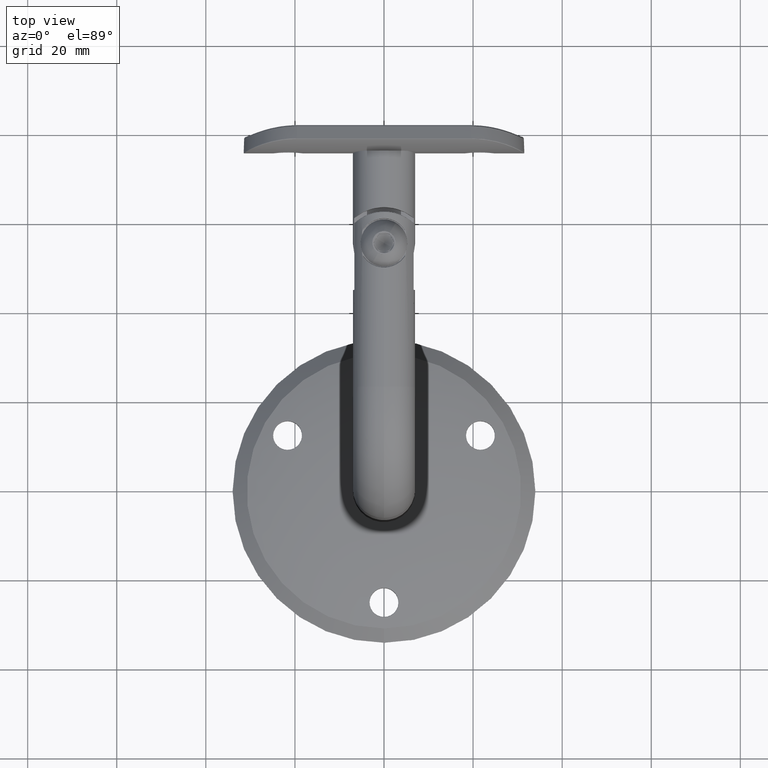
[diagram: clean part render]
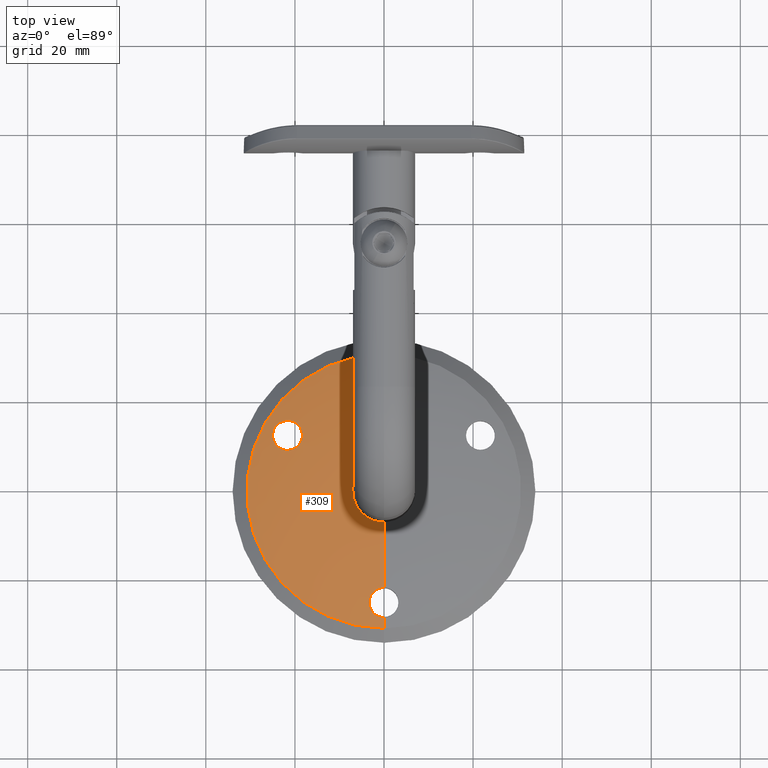
[diagram: same view with one face highlighted and labeled with its STEP entity id]
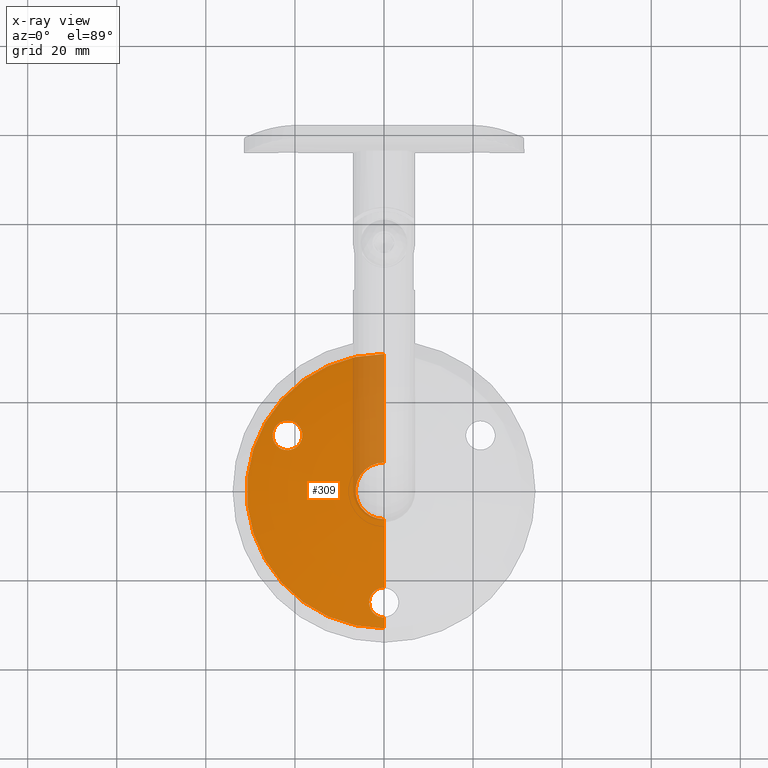
[diagram: x-ray of the same camera — body ghosted, the highlighted face saturated]
A machine part, top view. The second image highlights one B-rep face of the part: STEP entity #309.
The next image is the same camera in x-ray: the body ghosted, the highlighted face saturated — about 14% of this face is hidden behind the body in this view.
In plain terms, the highlighted toroidal blend (fillet) surface has major radius 6.25 mm and minor (blend) radius 96.8679 mm.
Its self-contained STEP definition (entity closure, byte-faithful):
#113 = CARTESIAN_POINT ( 'NONE',  ( -18.88436975276088958, 7.764005127690458252, -10.63877129872335026 ) ) ;
#309 = ADVANCED_FACE ( 'NONE', ( #7480, #27761 ), #23223, .T. ) ;
#460 = AXIS2_PLACEMENT_3D ( 'NONE', #38809, #41930, #41791 ) ;
#545 = CARTESIAN_POINT ( 'NONE',  ( -20.20460897393430599, 7.657943637663616521, -9.484504849147610273 ) ) ;
#616 = CARTESIAN_POINT ( 'NONE',  ( -1.449990056215694212, 7.706567403200184962, 21.98140986927519691 ) ) ;
#680 = CARTESIAN_POINT ( 'NONE',  ( -19.63712502215255640, 7.717655802517668029, -9.831680349398146390 ) ) ;
#795 = B_SPLINE_CURVE_WITH_KNOTS ( 'NONE', 3,
 ( #26483, #6654, #35822, #32865, #680, #36105, #545, #16446, #23238, #3520, #7079, #23367, #29314, #13725, #3381, #10037, #33002, #26196, #26344, #32577, #7212, #13586, #16730, #10459, #9897, #39087, #36245, #22958, #29874, #19972, #23097, #3943, #38951, #19557 ),
 .UNSPECIFIED., .F., .F.,
 ( 4, 2, 2, 2, 2, 2, 2, 2, 2, 2, 2, 2, 2, 2, 2, 2, 4 ),
 ( 0.01004217716932516435, 0.01071179321627208428, 0.01138140926321900420, 0.01205102531016592239, 0.01272064135711284232, 0.01339025740405976224, 0.01405987345100668043, 0.01472948949795360035, 0.01539910554490052028, 0.01606872159184744020, 0.01673833763879436012, 0.01740795368574128005, 0.01807756973268819650, 0.01874718577963511990, 0.01941680182658203635, 0.02008641787352895627, 0.02075603392047587620 ),
 .UNSPECIFIED. ) ;
#1017 = CARTESIAN_POINT ( 'NONE',  ( -2.269612283199117009, 6.621294304813971188, 27.49190981750293616 ) ) ;
#1702 = CARTESIAN_POINT ( 'NONE',  ( -3.073020831294827726, 7.388850922267840460, 23.64735845062012842 ) ) ;
#2050 = CARTESIAN_POINT ( 'NONE',  ( -19.14242210422298029, 7.331795726982631933, -14.72592402957221758 ) ) ;
#2187 = CARTESIAN_POINT ( 'NONE',  ( -18.76030394227489850, 7.766830583145130973, -10.82330556083602247 ) ) ;
#2687 = ORIENTED_EDGE ( 'NONE', *, *, #14735, .T. ) ;
#3073 = B_SPLINE_CURVE_WITH_KNOTS ( 'NONE', 3,
 ( #36999, #27239, #39700, #40253, #11076, #36863, #20457, #33606, #20868, #7557, #1017, #10797, #7973, #4694, #17476, #26825, #23711, #20320, #33467, #30627, #36443, #30906, #31039, #1702, #11485 ),
 .UNSPECIFIED., .F., .F.,
 ( 4, 2, 2, 2, 2, 2, 2, 2, 2, 1, 2, 2, 4 ),
 ( 0.01350257149453903092, 0.01394674332404163830, 0.01439091515354424568, 0.01527925881254945870, 0.01572343064205206087, 0.01616760247155466651, 0.01705594613055986739, 0.01794428978956506826, 0.01838846161906766349, 0.01883263344857025873, 0.01927680527807285743, 0.01972097710757545266, 0.02060932076658064660 ),
 .UNSPECIFIED. ) ;
#3381 = CARTESIAN_POINT ( 'NONE',  ( -22.76304972657694492, 7.245880655522235259, -9.333700394944882461 ) ) ;
#3520 = CARTESIAN_POINT ( 'NONE',  ( -21.25612208178355900, 7.514320594920508967, -9.174875404972864246 ) ) ;
#3943 = CARTESIAN_POINT ( 'NONE',  ( -24.67959307617952192, 6.439878441988254210, -14.00003190939281339 ) ) ;
#4017 = CARTESIAN_POINT ( 'NONE',  ( -0.5954560639913683007, 7.756154780579195496, 21.71588169977626848 ) ) ;
#4239 = B_SPLINE_CURVE_WITH_KNOTS ( 'NONE', 3,
 ( #11273, #24883, #37350, #30694, #37203, #5038, #40885, #21212, #37486, #8174, #41025, #27994, #30836, #8599, #21496, #33946, #31246, #2050, #31111, #11413, #18095, #14561, #34496, #21640, #14974, #15121, #8452, #34082, #14837, #27722, #2187, #8311 ),
 .UNSPECIFIED., .F., .F.,
 ( 4, 2, 2, 2, 2, 2, 2, 2, 2, 2, 2, 2, 2, 2, 2, 4 ),
 ( 0.02075603392047587620, 0.02142516816080276137, 0.02209430240112964308, 0.02276343664145652479, 0.02343257088178340997, 0.02477083936243718032, 0.02543997360276406550, 0.02610910784309094373, 0.02677824208341782197, 0.02744737632374470368, 0.02811651056407158539, 0.02878564480439846363, 0.02945477904472534186, 0.03012391328505222357, 0.03079304752537910528, 0.03146218176570598352 ),
 .UNSPECIFIED. ) ;
#4495 = EDGE_LOOP ( 'NONE', ( #2687, #38250 ) ) ;
#4532 = CIRCLE ( 'NONE', #39158, 30.79647275473251611 ) ;
#4573 = DIRECTION ( 'NONE',  ( 0.000000000000000000, 1.000000000000000000, 0.000000000000000000 ) ) ;
#4694 = CARTESIAN_POINT ( 'NONE',  ( -3.046385696920677066, 6.833457229528846710, 26.44972021618393043 ) ) ;
#5038 = CARTESIAN_POINT ( 'NONE',  ( -23.32304351481315408, 6.534350117458044949, -15.43406814889648970 ) ) ;
#5349 = CARTESIAN_POINT ( 'NONE',  ( 7.654042494670957606E-16, -87.86785809411674109, 6.250000000000000000 ) ) ;
#5513 = CARTESIAN_POINT ( 'NONE',  ( 0.000000000000000000, 8.999948276598058072, -6.350103340098694815 ) ) ;
#6654 = CARTESIAN_POINT ( 'NONE',  ( -19.00852489618667818, 7.761177637781354832, -10.45410416367763773 ) ) ;
#7079 = CARTESIAN_POINT ( 'NONE',  ( -21.47337358285708930, 7.480108171512290127, -9.155438363088961751 ) ) ;
#7150 = AXIS2_PLACEMENT_3D ( 'NONE', #5349, #21533, #34401 ) ;
#7212 = CARTESIAN_POINT ( 'NONE',  ( -24.33311332750059819, 6.862572489075211557, -10.46464103577099003 ) ) ;
#7480 = FACE_OUTER_BOUND ( 'NONE', #14622, .T. ) ;
#7557 = CARTESIAN_POINT ( 'NONE',  ( -2.158674393023957805, 6.601313266205786512, 27.58939962630828902 ) ) ;
#7757 = VERTEX_POINT ( 'NONE', #9493 ) ;
#7910 = EDGE_CURVE ( 'NONE', #12028, #25432, #795, .T. ) ;
#7973 = CARTESIAN_POINT ( 'NONE',  ( -2.753872146005892141, 6.731138120495266719, 26.95417151050573068 ) ) ;
#8174 = CARTESIAN_POINT ( 'NONE',  ( -21.86522611086288848, 6.746610719897838671, -15.88504298218200717 ) ) ;
#8311 = CARTESIAN_POINT ( 'NONE',  ( -18.88436975276088958, 7.764005127690458252, -10.63877129872335026 ) ) ;
#8452 = CARTESIAN_POINT ( 'NONE',  ( -18.33496008966692870, 7.718735766179689151, -12.07545456504852233 ) ) ;
#8599 = CARTESIAN_POINT ( 'NONE',  ( -20.17028316450166514, 7.078686323812888759, -15.51734990074950105 ) ) ;
#9377 = VERTEX_POINT ( 'NONE', #34255 ) ;
#9493 = CARTESIAN_POINT ( 'NONE',  ( 0.000000000000000000, 5.838345580149735703, -30.79647275473249834 ) ) ;
#9849 = DIRECTION ( 'NONE',  ( 1.000000000000000000, 0.000000000000000000, -1.224646799147353207E-16 ) ) ;
#9897 = CARTESIAN_POINT ( 'NONE',  ( -24.91130332805449399, 6.642077626940841029, -11.63321616827087546 ) ) ;
#10037 = CARTESIAN_POINT ( 'NONE',  ( -23.16457795113298701, 7.160837830445250241, -9.502068114688988487 ) ) ;
#10459 = CARTESIAN_POINT ( 'NONE',  ( -24.84760525592454528, 6.674682523447670768, -11.42457589331235646 ) ) ;
#10499 = EDGE_CURVE ( 'NONE', #25618, #21061, #3073, .T. ) ;
#10797 = CARTESIAN_POINT ( 'NONE',  ( -2.577889641971757406, 6.684456832386109326, 27.18312550167410180 ) ) ;
#11076 = CARTESIAN_POINT ( 'NONE',  ( -0.7300757598610723154, 6.455913858617709167, 28.29562571843665353 ) ) ;
#11263 = AXIS2_PLACEMENT_3D ( 'NONE', #28899, #38527, #18984 ) ;
#11273 = CARTESIAN_POINT ( 'NONE',  ( -24.45049536705160520, 6.441561734760084867, -14.38055701021066746 ) ) ;
#11413 = CARTESIAN_POINT ( 'NONE',  ( -18.76132118301876517, 7.447105586811051836, -14.19586701076284641 ) ) ;
#11485 = CARTESIAN_POINT ( 'NONE',  ( -2.931170364323873567, 7.438155799691800851, 23.39177821934775636 ) ) ;
#12028 = VERTEX_POINT ( 'NONE', #113 ) ;
#12259 = B_SPLINE_CURVE_WITH_KNOTS ( 'NONE', 3,
 ( #35183, #29390, #23312, #16659, #20048, #616, #23585, #13798, #4017, #26974, #33078, #13665 ),
 .UNSPECIFIED., .F., .F.,
 ( 4, 2, 2, 2, 2, 4 ),
 ( 0.02060932076658064660, 0.02151165632339694517, 0.02241399188021324027, 0.02331632743702953536, 0.02376749521543768465, 0.02421866299384583393 ),
 .UNSPECIFIED. ) ;
#13198 = CARTESIAN_POINT ( 'NONE',  ( 3.771480178411183126E-15, 5.838345580149735703, 30.79647275473249834 ) ) ;
#13363 = EDGE_CURVE ( 'NONE', #19838, #26578, #23960, .T. ) ;
#13586 = CARTESIAN_POINT ( 'NONE',  ( -24.57443925685682018, 6.783834060992217196, -10.82504973741892051 ) ) ;
#13665 = CARTESIAN_POINT ( 'NONE',  ( -1.515102374785700318E-11, 7.765459926951401748, 21.66591437518956198 ) ) ;
#13725 = CARTESIAN_POINT ( 'NONE',  ( -22.55607965556507111, 7.287258107299114940, -9.269679829469362531 ) ) ;
#13798 = CARTESIAN_POINT ( 'NONE',  ( -0.7408065044310321312, 7.750646023303026766, 21.74544582625444988 ) ) ;
#14067 = ORIENTED_EDGE ( 'NONE', *, *, #10499, .T. ) ;
#14561 = CARTESIAN_POINT ( 'NONE',  ( -18.48877718914868140, 7.549637145944189776, -13.59855917835957406 ) ) ;
#14578 = CARTESIAN_POINT ( 'NONE',  ( 0.000000000000000000, -87.86785809411674109, -6.250000000000000000 ) ) ;
#14622 = EDGE_LOOP ( 'NONE', ( #16145, #20560, #20920, #26751, #28330, #14067, #31561 ) ) ;
#14735 = EDGE_CURVE ( 'NONE', #25432, #12028, #4239, .T. ) ;
#14837 = CARTESIAN_POINT ( 'NONE',  ( -18.48493038155176649, 7.754764268409490846, -11.42985724412380399 ) ) ;
#14974 = CARTESIAN_POINT ( 'NONE',  ( -18.31476472421917734, 7.659950838760024361, -12.73639602178843155 ) ) ;
#15121 = CARTESIAN_POINT ( 'NONE',  ( -18.31368283862827440, 7.701370264884800143, -12.29778212237320112 ) ) ;
#16145 = ORIENTED_EDGE ( 'NONE', *, *, #22845, .F. ) ;
#16446 = CARTESIAN_POINT ( 'NONE',  ( -20.61077105020956779, 7.606984239624523525, -9.319982355924013362 ) ) ;
#16659 = CARTESIAN_POINT ( 'NONE',  ( -2.194577158518170368, 7.615115253278174734, 22.46682232751054542 ) ) ;
#16730 = CARTESIAN_POINT ( 'NONE',  ( -24.67874510371081698, 6.745793590609743262, -11.01896314095520069 ) ) ;
#17476 = CARTESIAN_POINT ( 'NONE',  ( -3.157337170749906718, 6.887220668680908986, 26.18344704873991446 ) ) ;
#17722 = CIRCLE ( 'NONE', #7150, 96.86785809411671266 ) ;
#18095 = CARTESIAN_POINT ( 'NONE',  ( -18.65649022201206009, 7.483342597954394826, -14.00065719998165115 ) ) ;
#18523 = DIRECTION ( 'NONE',  ( 0.000000000000000000, 0.000000000000000000, 1.000000000000000000 ) ) ;
#18984 = DIRECTION ( 'NONE',  ( 0.000000000000000000, 0.000000000000000000, -1.000000000000000000 ) ) ;
#19557 = CARTESIAN_POINT ( 'NONE',  ( -24.45049536705160520, 6.441561734760084867, -14.38055701021066746 ) ) ;
#19656 = CARTESIAN_POINT ( 'NONE',  ( 7.654042494670957606E-16, -87.86785809411674109, 6.250000000000000000 ) ) ;
#19838 = VERTEX_POINT ( 'NONE', #29544 ) ;
#19972 = CARTESIAN_POINT ( 'NONE',  ( -24.91409777992758023, 6.462230544478107852, -13.37767664768560394 ) ) ;
#20048 = CARTESIAN_POINT ( 'NONE',  ( -1.958779228482589563, 7.650044108697684919, 22.28188466516521871 ) ) ;
#20320 = CARTESIAN_POINT ( 'NONE',  ( -3.340605636468998441, 7.056553104239552177, 25.33770940472569322 ) ) ;
#20457 = CARTESIAN_POINT ( 'NONE',  ( -1.429055764034242948, 6.503154605262033705, 28.06689049392520374 ) ) ;
#20560 = ORIENTED_EDGE ( 'NONE', *, *, #13363, .T. ) ;
#20868 = CARTESIAN_POINT ( 'NONE',  ( -1.927501762217993519, 6.564837226553289717, 27.76711481342989885 ) ) ;
#20920 = ORIENTED_EDGE ( 'NONE', *, *, #21256, .T. ) ;
#21061 = VERTEX_POINT ( 'NONE', #38956 ) ;
#21212 = CARTESIAN_POINT ( 'NONE',  ( -22.72131757297311339, 6.614018204365645026, -15.70047157135751092 ) ) ;
#21256 = EDGE_CURVE ( 'NONE', #26578, #7757, #22866, .T. ) ;
#21496 = CARTESIAN_POINT ( 'NONE',  ( -19.97999747108489643, 7.121577035608239292, -15.41476791582935846 ) ) ;
#21533 = DIRECTION ( 'NONE',  ( 1.000000000000000000, 0.000000000000000000, -1.224646799147353207E-16 ) ) ;
#21640 = CARTESIAN_POINT ( 'NONE',  ( -18.33675255848055130, 7.635680814868571531, -12.95563159697437605 ) ) ;
#22845 = EDGE_CURVE ( 'NONE', #19838, #9377, #40034, .T. ) ;
#22866 = CIRCLE ( 'NONE', #34428, 96.86785809411671266 ) ;
#22958 = CARTESIAN_POINT ( 'NONE',  ( -25.02105049349017918, 6.510468612184822312, -12.72497981356864116 ) ) ;
#23041 = AXIS2_PLACEMENT_3D ( 'NONE', #19656, #9849, #35484 ) ;
#23097 = CARTESIAN_POINT ( 'NONE',  ( -24.84879817311117023, 6.451690018710785957, -13.59272990629956190 ) ) ;
#23223 = TOROIDAL_SURFACE ( 'NONE', #460, 6.250000000000000000, 96.86785809411671266 ) ;
#23238 = CARTESIAN_POINT ( 'NONE',  ( -20.82292489654399148, 7.578053810575950955, -9.257343373061299729 ) ) ;
#23312 = CARTESIAN_POINT ( 'NONE',  ( -2.610403046599456101, 7.533788615690563795, 22.89419129473810344 ) ) ;
#23367 = CARTESIAN_POINT ( 'NONE',  ( -21.90911745402711830, 7.407039717540552459, -9.158623470806666944 ) ) ;
#23446 = CARTESIAN_POINT ( 'NONE',  ( 0.000000000000000000, 5.838345580149728598, 0.000000000000000000 ) ) ;
#23585 = CARTESIAN_POINT ( 'NONE',  ( -1.170466960382350319, 7.728715532956048406, 21.86294146613846223 ) ) ;
#23711 = CARTESIAN_POINT ( 'NONE',  ( -3.300860224466116488, 6.999437648803592538, 25.62396319678039802 ) ) ;
#23960 = CIRCLE ( 'NONE', #11263, 6.350103340098694815 ) ;
#24883 = CARTESIAN_POINT ( 'NONE',  ( -24.32576433262265425, 6.444716596891058025, -14.56609356746139561 ) ) ;
#25432 = VERTEX_POINT ( 'NONE', #39044 ) ;
#25618 = VERTEX_POINT ( 'NONE', #37450 ) ;
#26196 = CARTESIAN_POINT ( 'NONE',  ( -23.71773566612826656, 7.031363451280375543, -9.848261272098874031 ) ) ;
#26203 = VERTEX_POINT ( 'NONE', #13198 ) ;
#26344 = CARTESIAN_POINT ( 'NONE',  ( -23.88516102567360377, 6.988650394367642349, -9.985810189269974657 ) ) ;
#26483 = CARTESIAN_POINT ( 'NONE',  ( -18.88436975276088958, 7.764005127690458252, -10.63877129872335026 ) ) ;
#26578 = VERTEX_POINT ( 'NONE', #5513 ) ;
#26751 = ORIENTED_EDGE ( 'NONE', *, *, #31110, .T. ) ;
#26825 = CARTESIAN_POINT ( 'NONE',  ( -3.271449269647904057, 6.970826677487855783, 25.76691009933510657 ) ) ;
#26974 = CARTESIAN_POINT ( 'NONE',  ( -0.3004647248549522365, 7.763565748544999146, 21.67609431338963688 ) ) ;
#27239 = CARTESIAN_POINT ( 'NONE',  ( -0.1469731516454047537, 6.439946266969223565, 28.37283816179747120 ) ) ;
#27722 = CARTESIAN_POINT ( 'NONE',  ( -18.65401969874552890, 7.765495353317215077, -11.02175773427627092 ) ) ;
#27761 = FACE_BOUND ( 'NONE', #4495, .T. ) ;
#27994 = CARTESIAN_POINT ( 'NONE',  ( -20.78198803884491497, 6.949583335634506476, -15.75059364352436297 ) ) ;
#28330 = ORIENTED_EDGE ( 'NONE', *, *, #32735, .F. ) ;
#28899 = CARTESIAN_POINT ( 'NONE',  ( 0.000000000000000000, 8.999948276598058072, 0.000000000000000000 ) ) ;
#29314 = CARTESIAN_POINT ( 'NONE',  ( -22.12974341503281295, 7.367754973174199584, -9.181931951515744927 ) ) ;
#29390 = CARTESIAN_POINT ( 'NONE',  ( -2.787085675024438380, 7.488237255863759323, 23.13217245984399284 ) ) ;
#29544 = CARTESIAN_POINT ( 'NONE',  ( 2.274571775690937901E-15, 8.999948276598058072, 6.350103340098694815 ) ) ;
#29874 = CARTESIAN_POINT ( 'NONE',  ( -24.99993555280295254, 6.491693899676505453, -12.94358346629237388 ) ) ;
#30627 = CARTESIAN_POINT ( 'NONE',  ( -3.346009835441961400, 7.170221728200237621, 24.76442720270191700 ) ) ;
#30694 = CARTESIAN_POINT ( 'NONE',  ( -23.86643991937079790, 6.476796793488594162, -15.05120562605841883 ) ) ;
#30836 = CARTESIAN_POINT ( 'NONE',  ( -20.57187244035891993, 6.992537665105833078, -15.68577681637328780 ) ) ;
#30906 = CARTESIAN_POINT ( 'NONE',  ( -3.284920254707538234, 7.254942845139799701, 24.33381620814076030 ) ) ;
#31039 = CARTESIAN_POINT ( 'NONE',  ( -3.178605852142115662, 7.336869850299843065, 23.91501539626563755 ) ) ;
#31110 = EDGE_CURVE ( 'NONE', #7757, #26203, #4532, .T. ) ;
#31111 = CARTESIAN_POINT ( 'NONE',  ( -19.00470238416875191, 7.371250900729251043, -14.55859615087474879 ) ) ;
#31246 = CARTESIAN_POINT ( 'NONE',  ( -19.44932962702350920, 7.249824303188737495, -15.03300833522421165 ) ) ;
#31561 = ORIENTED_EDGE ( 'NONE', *, *, #35623, .T. ) ;
#32577 = CARTESIAN_POINT ( 'NONE',  ( -24.19478349653300242, 6.903737366512611828, -10.29581265229252551 ) ) ;
#32735 = EDGE_CURVE ( 'NONE', #25618, #26203, #17722, .T. ) ;
#32865 = CARTESIAN_POINT ( 'NONE',  ( -19.46615608025240007, 7.732368712024737967, -9.970365594569196688 ) ) ;
#33002 = CARTESIAN_POINT ( 'NONE',  ( -23.35856257111939627, 7.117227140433865173, -9.606795501703347284 ) ) ;
#33078 = CARTESIAN_POINT ( 'NONE',  ( -0.1496395717577611029, 7.765459926951319147, 21.66591437519022989 ) ) ;
#33467 = CARTESIAN_POINT ( 'NONE',  ( -3.361602381065077250, 7.113532154065466351, 25.05126075219595450 ) ) ;
#33606 = CARTESIAN_POINT ( 'NONE',  ( -1.806746010419903126, 6.548207193377967528, 27.84800176604140987 ) ) ;
#33946 = CARTESIAN_POINT ( 'NONE',  ( -19.62012539954136514, 7.206965732472369268, -15.17341136699489113 ) ) ;
#34082 = CARTESIAN_POINT ( 'NONE',  ( -18.42103044715035765, 7.745445666898548076, -11.64056886670755908 ) ) ;
#34255 = CARTESIAN_POINT ( 'NONE',  ( -1.515102374785700318E-11, 7.765459926951401748, 21.66591437518956198 ) ) ;
#34401 = DIRECTION ( 'NONE',  ( -1.224646799147353207E-16, 0.000000000000000000, -1.000000000000000000 ) ) ;
#34428 = AXIS2_PLACEMENT_3D ( 'NONE', #14578, #40620, #18523 ) ;
#34496 = CARTESIAN_POINT ( 'NONE',  ( -18.42443506483321158, 7.580129511023753430, -13.38970725347756918 ) ) ;
#35183 = CARTESIAN_POINT ( 'NONE',  ( -2.931170364323873567, 7.438155799691800851, 23.39177821934775636 ) ) ;
#35484 = DIRECTION ( 'NONE',  ( -1.224646799147353207E-16, 0.000000000000000000, -1.000000000000000000 ) ) ;
#35623 = EDGE_CURVE ( 'NONE', #21061, #9377, #12259, .T. ) ;
#35822 = CARTESIAN_POINT ( 'NONE',  ( -19.15221521599865184, 7.754144168225629130, -10.28079937337680860 ) ) ;
#36105 = CARTESIAN_POINT ( 'NONE',  ( -20.00740788346595522, 7.680362585827102961, -9.587795494033645838 ) ) ;
#36245 = CARTESIAN_POINT ( 'NONE',  ( -25.02032823163965602, 6.555907606715017266, -12.28469866639594521 ) ) ;
#36443 = CARTESIAN_POINT ( 'NONE',  ( -3.311654581709726486, 7.226759107776111968, 24.47739553680938585 ) ) ;
#36462 = DIRECTION ( 'NONE',  ( 0.000000000000000000, 0.000000000000000000, -1.000000000000000000 ) ) ;
#36863 = CARTESIAN_POINT ( 'NONE',  ( -1.153213894492723268, 6.479441215542288468, 28.18174942437357089 ) ) ;
#36999 = CARTESIAN_POINT ( 'NONE',  ( -1.284563450155424151E-11, 6.439946266969041488, 28.37283816179801121 ) ) ;
#37203 = CARTESIAN_POINT ( 'NONE',  ( -23.69187991807662641, 6.493466497425134598, -15.19207025331277805 ) ) ;
#37350 = CARTESIAN_POINT ( 'NONE',  ( -24.18390501811148496, 6.452413977281856283, -14.73738441887537221 ) ) ;
#37450 = CARTESIAN_POINT ( 'NONE',  ( -1.284563450155424151E-11, 6.439946266969041488, 28.37283816179801121 ) ) ;
#37486 = CARTESIAN_POINT ( 'NONE',  ( -22.50771595447314866, 6.645488675002493295, -15.76307810354115091 ) ) ;
#38250 = ORIENTED_EDGE ( 'NONE', *, *, #7910, .T. ) ;
#38527 = DIRECTION ( 'NONE',  ( -0.000000000000000000, -1.000000000000000000, -0.000000000000000000 ) ) ;
#38809 = CARTESIAN_POINT ( 'NONE',  ( 0.000000000000000000, -87.86785809411674109, 0.000000000000000000 ) ) ;
#38951 = CARTESIAN_POINT ( 'NONE',  ( -24.57531621341139427, 6.438404600987089665, -14.19488685832951802 ) ) ;
#38956 = CARTESIAN_POINT ( 'NONE',  ( -2.931170364323873567, 7.438155799691800851, 23.39177821934775636 ) ) ;
#39044 = CARTESIAN_POINT ( 'NONE',  ( -24.45049536705160520, 6.441561734760084867, -14.38055701021066746 ) ) ;
#39087 = CARTESIAN_POINT ( 'NONE',  ( -24.99777486665788118, 6.582799655672772587, -12.06202865086047460 ) ) ;
#39158 = AXIS2_PLACEMENT_3D ( 'NONE', #23446, #4573, #36462 ) ;
#39700 = CARTESIAN_POINT ( 'NONE',  ( -0.2957390729692281894, 6.441983315099876428, 28.36299255895963967 ) ) ;
#40034 = CIRCLE ( 'NONE', #23041, 96.86785809411671266 ) ;
#40253 = CARTESIAN_POINT ( 'NONE',  ( -0.5868038288861820995, 6.449976789830404122, 28.32433956683429699 ) ) ;
#40620 = DIRECTION ( 'NONE',  ( -1.000000000000000000, 0.000000000000000000, 0.000000000000000000 ) ) ;
#40885 = CARTESIAN_POINT ( 'NONE',  ( -23.12889278872196641, 6.558494029089218635, -15.53566766637102603 ) ) ;
#41025 = CARTESIAN_POINT ( 'NONE',  ( -21.41830847998359388, 6.825580308065950952, -15.88116265228212143 ) ) ;
#41791 = DIRECTION ( 'NONE',  ( 0.000000000000000000, 0.000000000000000000, -1.000000000000000000 ) ) ;
#41930 = DIRECTION ( 'NONE',  ( -0.000000000000000000, -1.000000000000000000, -0.000000000000000000 ) ) ;